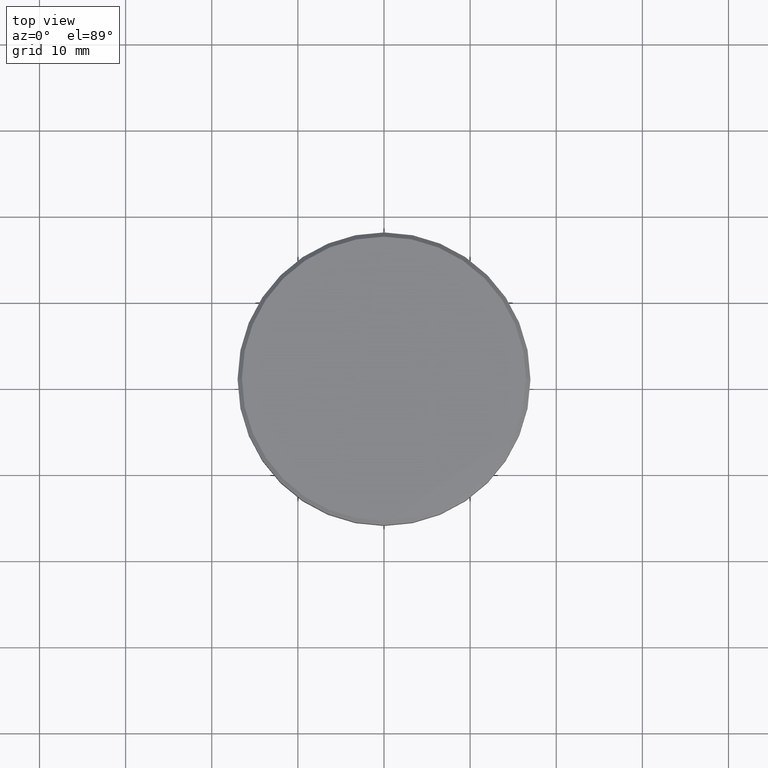
[diagram: clean part render]
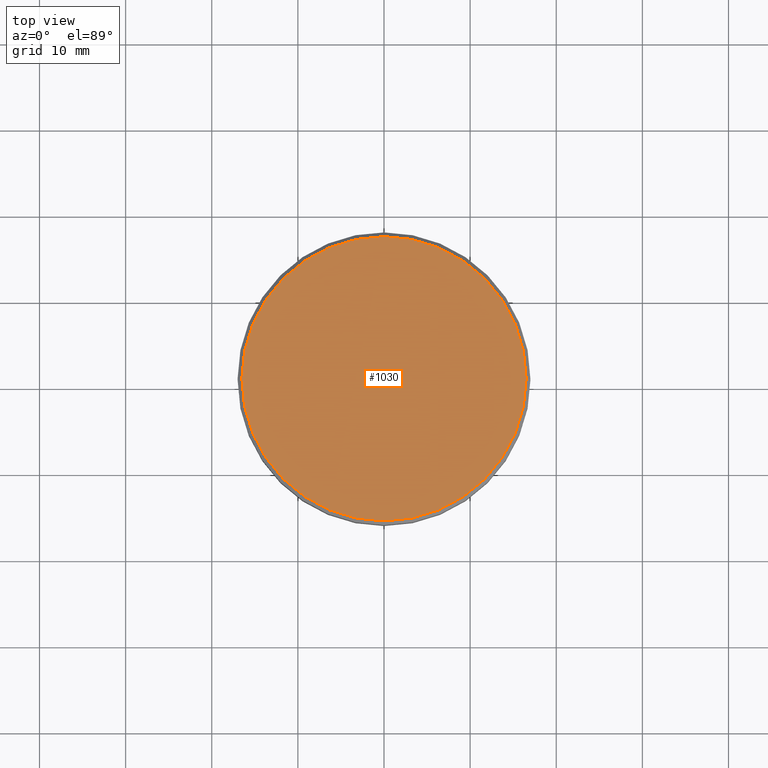
[diagram: same view with one face highlighted and labeled with its STEP entity id]
A machine part, top view. The second image highlights one B-rep face of the part: STEP entity #1030.
In plain terms, the highlighted planar face has unit normal (0, -0, 1).
Its self-contained STEP definition (entity closure, byte-faithful):
#2 = CARTESIAN_POINT ( 'NONE',  ( 0.000000000000000000, 0.000000000000000000, 0.000000000000000000 ) ) ;
#26 = CARTESIAN_POINT ( 'NONE',  ( 0.000000000000000000, 0.000000000000000000, 0.000000000000000000 ) ) ;
#209 = PLANE ( 'NONE',  #1104 ) ;
#265 = DIRECTION ( 'NONE',  ( 1.000000000000000000, 0.000000000000000000, 0.000000000000000000 ) ) ;
#446 = EDGE_CURVE ( 'NONE', #1175, #1160, #981, .T. ) ;
#457 = CIRCLE ( 'NONE', #1091, 16.50000000000000000 ) ;
#464 = EDGE_CURVE ( 'NONE', #1160, #1175, #457, .T. ) ;
#724 = EDGE_LOOP ( 'NONE', ( #1071, #824 ) ) ;
#738 = DIRECTION ( 'NONE',  ( -0.000000000000000000, -0.000000000000000000, 1.000000000000000000 ) ) ;
#745 = FACE_OUTER_BOUND ( 'NONE', #724, .T. ) ;
#823 = CARTESIAN_POINT ( 'NONE',  ( 0.000000000000000000, 0.000000000000000000, 0.000000000000000000 ) ) ;
#824 = ORIENTED_EDGE ( 'NONE', *, *, #464, .T. ) ;
#825 = CARTESIAN_POINT ( 'NONE',  ( -16.50000000000000000, 0.000000000000000000, 0.000000000000000000 ) ) ;
#907 = AXIS2_PLACEMENT_3D ( 'NONE', #823, #1086, #265 ) ;
#952 = DIRECTION ( 'NONE',  ( 0.000000000000000000, -0.000000000000000000, 1.000000000000000000 ) ) ;
#981 = CIRCLE ( 'NONE', #907, 16.50000000000000000 ) ;
#1001 = DIRECTION ( 'NONE',  ( 1.000000000000000000, 0.000000000000000000, 0.000000000000000000 ) ) ;
#1030 = ADVANCED_FACE ( 'NONE', ( #745 ), #209, .T. ) ;
#1071 = ORIENTED_EDGE ( 'NONE', *, *, #446, .T. ) ;
#1073 = CARTESIAN_POINT ( 'NONE',  ( 16.50000000000000000, 2.051283388571816887E-15, 0.000000000000000000 ) ) ;
#1086 = DIRECTION ( 'NONE',  ( -0.000000000000000000, -0.000000000000000000, 1.000000000000000000 ) ) ;
#1091 = AXIS2_PLACEMENT_3D ( 'NONE', #2, #738, #1001 ) ;
#1104 = AXIS2_PLACEMENT_3D ( 'NONE', #26, #952, #1111 ) ;
#1111 = DIRECTION ( 'NONE',  ( 1.000000000000000000, 0.000000000000000000, 0.000000000000000000 ) ) ;
#1160 = VERTEX_POINT ( 'NONE', #1073 ) ;
#1175 = VERTEX_POINT ( 'NONE', #825 ) ;